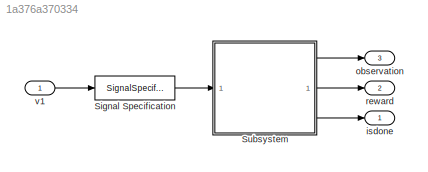
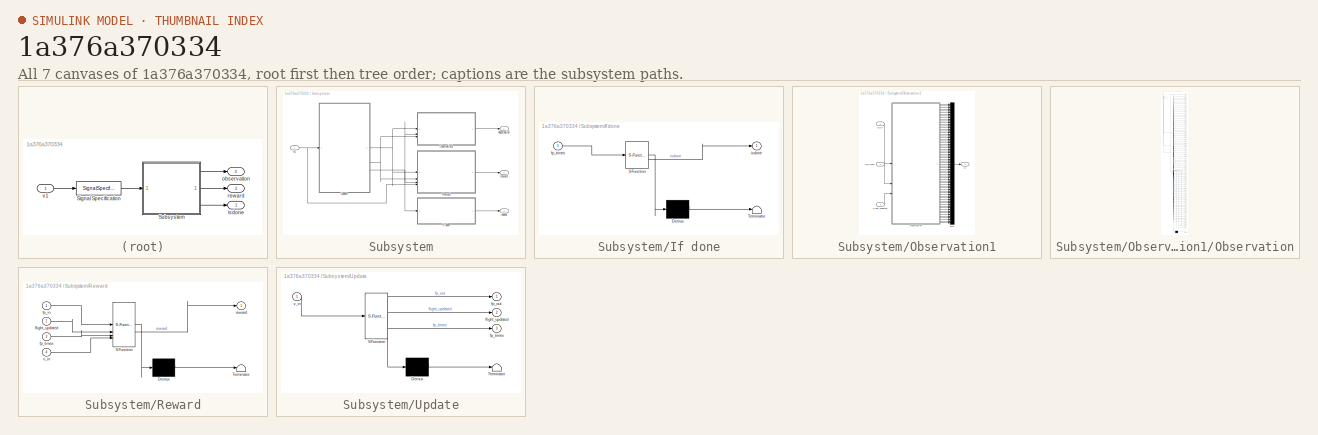
[diagram: thumbnail index - all 7 canvases of the model, root first then tree order]
MODEL slx_1a376a370334
KIND model
CONFIG AbsTol = auto
CONFIG EnableMultiTasking = off
CONFIG FixedStep = auto
CONFIG MaxStep = auto
CONFIG MinStep = auto
CONFIG RelTol = 1e-3
CONFIG SampleTimeConstraint = Unconstrained
CONFIG SolverName = VariableStepAuto
CONFIG StartTime = 0.0
CONFIG StopTime = 10.0
BLOCK [SignalSpecification] Signal Specification
  Dimensions = 1
BLOCK [SubSystem] Subsystem
BLOCK [SubSystem] Subsystem/If done
  ErrorFcn = Stateflow.Translate.translate
  LibrarySourceBlock = simulink/User-Defined\nFunctions/MATLAB Function
  PermitHierarchicalResolution = ExplicitOnly
  SFBlockType = MATLAB Function
  TreatAsAtomicUnit = on
BLOCK [Demux] Subsystem/If done/ Demux 
  Outputs = 1
BLOCK [S-Function] Subsystem/If done/ SFunction 
  EnableBusSupport = off
  FunctionName = sf_sfun
  PortCounts = [1 2]
  SFcnIsStateOwnerBlock = off
  SFunctionDeploymentMode = off
  Tag = Stateflow S-Function 7
BLOCK [Terminator] Subsystem/If done/ Terminator 
BLOCK [Inport] Subsystem/If done/fp_times
BLOCK [Outport] Subsystem/If done/isdone
BLOCK [SubSystem] Subsystem/Observation1
BLOCK [Mux] Subsystem/Observation1/Mux
  DisplayOption = bar
  Inputs = 72
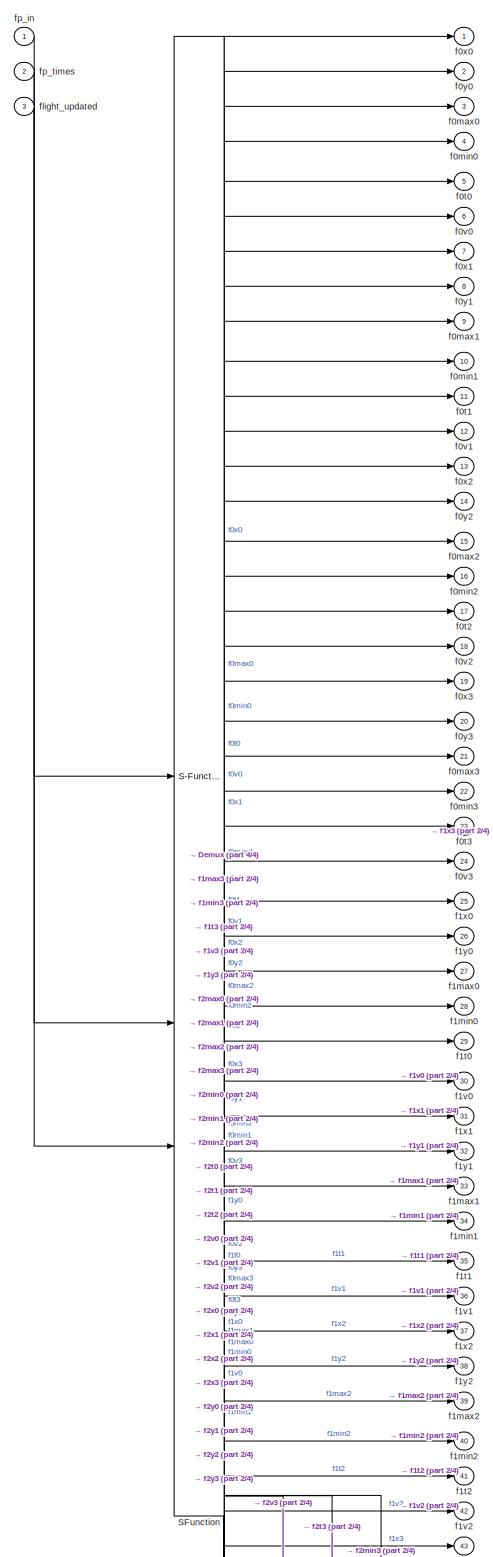
[diagram: Subsystem/Observation1/Observation - part 1/4, full width, top band]
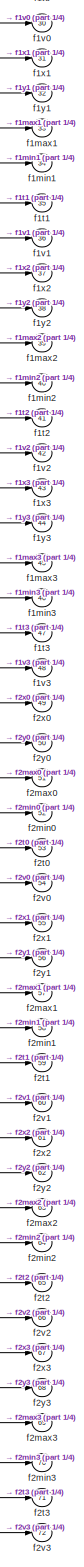
[diagram: Subsystem/Observation1/Observation - part 2/4, bottom right region]
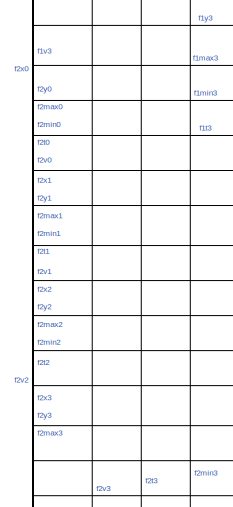
[diagram: Subsystem/Observation1/Observation - part 3/4, central region]
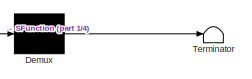
[diagram: Subsystem/Observation1/Observation - part 4/4, bottom right region]
BLOCK [SubSystem] Subsystem/Observation1/Observation
  ErrorFcn = Stateflow.Translate.translate
  LibrarySourceBlock = simulink/User-Defined\nFunctions/MATLAB Function
  PermitHierarchicalResolution = ExplicitOnly
  SFBlockType = MATLAB Function
  TreatAsAtomicUnit = on
BLOCK [Demux] Subsystem/Observation1/Observation/ Demux 
  Outputs = 1
BLOCK [S-Function] Subsystem/Observation1/Observation/ SFunction 
  EnableBusSupport = on
  FunctionName = sf_sfun
  PortCounts = [3 73]
  SFcnIsStateOwnerBlock = off
  SFunctionDeploymentMode = off
  Tag = Stateflow S-Function 8
BLOCK [Terminator] Subsystem/Observation1/Observation/ Terminator 
BLOCK [Outport] Subsystem/Observation1/Observation/f0max0
  Port = 3
BLOCK [Outport] Subsystem/Observation1/Observation/f0max1
  Port = 9
BLOCK [Outport] Subsystem/Observation1/Observation/f0max2
  Port = 15
BLOCK [Outport] Subsystem/Observation1/Observation/f0max3
  Port = 21
BLOCK [Outport] Subsystem/Observation1/Observation/f0min0
  Port = 4
BLOCK [Outport] Subsystem/Observation1/Observation/f0min1
  Port = 10
BLOCK [Outport] Subsystem/Observation1/Observation/f0min2
  Port = 16
BLOCK [Outport] Subsystem/Observation1/Observation/f0min3
  Port = 22
BLOCK [Outport] Subsystem/Observation1/Observation/f0t0
  Port = 5
BLOCK [Outport] Subsystem/Observation1/Observation/f0t1
  Port = 11
BLOCK [Outport] Subsystem/Observation1/Observation/f0t2
  Port = 17
BLOCK [Outport] Subsystem/Observation1/Observation/f0t3
  Port = 23
BLOCK [Outport] Subsystem/Observation1/Observation/f0v0
  Port = 6
BLOCK [Outport] Subsystem/Observation1/Observation/f0v1
  Port = 12
BLOCK [Outport] Subsystem/Observation1/Observation/f0v2
  Port = 18
BLOCK [Outport] Subsystem/Observation1/Observation/f0v3
  Port = 24
BLOCK [Outport] Subsystem/Observation1/Observation/f0x0
BLOCK [Outport] Subsystem/Observation1/Observation/f0x1
  Port = 7
BLOCK [Outport] Subsystem/Observation1/Observation/f0x2
  Port = 13
BLOCK [Outport] Subsystem/Observation1/Observation/f0x3
  Port = 19
BLOCK [Outport] Subsystem/Observation1/Observation/f0y0
  Port = 2
BLOCK [Outport] Subsystem/Observation1/Observation/f0y1
  Port = 8
BLOCK [Outport] Subsystem/Observation1/Observation/f0y2
  Port = 14
BLOCK [Outport] Subsystem/Observation1/Observation/f0y3
  Port = 20
BLOCK [Outport] Subsystem/Observation1/Observation/f1max0
  Port = 27
BLOCK [Outport] Subsystem/Observation1/Observation/f1max1
  Port = 33
BLOCK [Outport] Subsystem/Observation1/Observation/f1max2
  Port = 39
BLOCK [Outport] Subsystem/Observation1/Observation/f1max3
  Port = 45
BLOCK [Outport] Subsystem/Observation1/Observation/f1min0
  Port = 28
BLOCK [Outport] Subsystem/Observation1/Observation/f1min1
  Port = 34
BLOCK [Outport] Subsystem/Observation1/Observation/f1min2
  Port = 40
BLOCK [Outport] Subsystem/Observation1/Observation/f1min3
  Port = 46
BLOCK [Outport] Subsystem/Observation1/Observation/f1t0
  Port = 29
BLOCK [Outport] Subsystem/Observation1/Observation/f1t1
  Port = 35
BLOCK [Outport] Subsystem/Observation1/Observation/f1t2
  Port = 41
BLOCK [Outport] Subsystem/Observation1/Observation/f1t3
  Port = 47
BLOCK [Outport] Subsystem/Observation1/Observation/f1v0
  Port = 30
BLOCK [Outport] Subsystem/Observation1/Observation/f1v1
  Port = 36
BLOCK [Outport] Subsystem/Observation1/Observation/f1v2
  Port = 42
BLOCK [Outport] Subsystem/Observation1/Observation/f1v3
  Port = 48
BLOCK [Outport] Subsystem/Observation1/Observation/f1x0
  Port = 25
BLOCK [Outport] Subsystem/Observation1/Observation/f1x1
  Port = 31
BLOCK [Outport] Subsystem/Observation1/Observation/f1x2
  Port = 37
BLOCK [Outport] Subsystem/Observation1/Observation/f1x3
  Port = 43
BLOCK [Outport] Subsystem/Observation1/Observation/f1y0
  Port = 26
BLOCK [Outport] Subsystem/Observation1/Observation/f1y1
  Port = 32
BLOCK [Outport] Subsystem/Observation1/Observation/f1y2
  Port = 38
BLOCK [Outport] Subsystem/Observation1/Observation/f1y3
  Port = 44
BLOCK [Outport] Subsystem/Observation1/Observation/f2max0
  Port = 51
BLOCK [Outport] Subsystem/Observation1/Observation/f2max1
  Port = 57
BLOCK [Outport] Subsystem/Observation1/Observation/f2max2
  Port = 63
BLOCK [Outport] Subsystem/Observation1/Observation/f2max3
  Port = 69
BLOCK [Outport] Subsystem/Observation1/Observation/f2min0
  Port = 52
BLOCK [Outport] Subsystem/Observation1/Observation/f2min1
  Port = 58
BLOCK [Outport] Subsystem/Observation1/Observation/f2min2
  Port = 64
BLOCK [Outport] Subsystem/Observation1/Observation/f2min3
  Port = 70
BLOCK [Outport] Subsystem/Observation1/Observation/f2t0
  Port = 53
BLOCK [Outport] Subsystem/Observation1/Observation/f2t1
  Port = 59
BLOCK [Outport] Subsystem/Observation1/Observation/f2t2
  Port = 65
BLOCK [Outport] Subsystem/Observation1/Observation/f2t3
  Port = 71
BLOCK [Outport] Subsystem/Observation1/Observation/f2v0
  Port = 54
BLOCK [Outport] Subsystem/Observation1/Observation/f2v1
  Port = 60
BLOCK [Outport] Subsystem/Observation1/Observation/f2v2
  Port = 66
BLOCK [Outport] Subsystem/Observation1/Observation/f2v3
  Port = 72
BLOCK [Outport] Subsystem/Observation1/Observation/f2x0
  Port = 49
BLOCK [Outport] Subsystem/Observation1/Observation/f2x1
  Port = 55
BLOCK [Outport] Subsystem/Observation1/Observation/f2x2
  Port = 61
BLOCK [Outport] Subsystem/Observation1/Observation/f2x3
  Port = 67
BLOCK [Outport] Subsystem/Observation1/Observation/f2y0
  Port = 50
BLOCK [Outport] Subsystem/Observation1/Observation/f2y1
  Port = 56
BLOCK [Outport] Subsystem/Observation1/Observation/f2y2
  Port = 62
BLOCK [Outport] Subsystem/Observation1/Observation/f2y3
  Port = 68
BLOCK [Inport] Subsystem/Observation1/Observation/flight_updated
  Port = 3
BLOCK [Inport] Subsystem/Observation1/Observation/fp_in
BLOCK [Inport] Subsystem/Observation1/Observation/fp_times
  Port = 2
BLOCK [Inport] Subsystem/Observation1/flight_updated
  Port = 3
BLOCK [Outport] Subsystem/Observation1/fp
BLOCK [Inport] Subsystem/Observation1/fp_in
BLOCK [Inport] Subsystem/Observation1/fp_times
  Port = 2
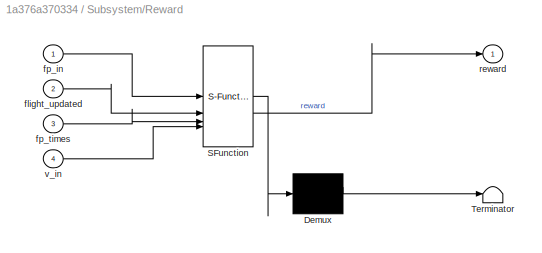
BLOCK [SubSystem] Subsystem/Reward
  ErrorFcn = Stateflow.Translate.translate
  LibrarySourceBlock = simulink/User-Defined\nFunctions/MATLAB Function
  PermitHierarchicalResolution = ExplicitOnly
  SFBlockType = MATLAB Function
  TreatAsAtomicUnit = on
BLOCK [Demux] Subsystem/Reward/ Demux 
  Outputs = 1
BLOCK [S-Function] Subsystem/Reward/ SFunction 
  EnableBusSupport = off
  FunctionName = sf_sfun
  PortCounts = [4 2]
  SFcnIsStateOwnerBlock = off
  SFunctionDeploymentMode = off
  Tag = Stateflow S-Function 6
BLOCK [Terminator] Subsystem/Reward/ Terminator 
BLOCK [Inport] Subsystem/Reward/flight_updated
  Port = 2
BLOCK [Inport] Subsystem/Reward/fp_in
BLOCK [Inport] Subsystem/Reward/fp_times
  Port = 3
BLOCK [Outport] Subsystem/Reward/reward
BLOCK [Inport] Subsystem/Reward/v_in
  Port = 4
BLOCK [SubSystem] Subsystem/Update
  ErrorFcn = Stateflow.Translate.translate
  LibrarySourceBlock = simulink/User-Defined\nFunctions/MATLAB Function
  PermitHierarchicalResolution = ExplicitOnly
  SFBlockType = MATLAB Function
  TreatAsAtomicUnit = on
BLOCK [Demux] Subsystem/Update/ Demux 
  Outputs = 1
BLOCK [S-Function] Subsystem/Update/ SFunction 
  EnableBusSupport = off
  FunctionName = sf_sfun
  Parameters = fp_in
  PortCounts = [1 4]
  SFcnIsStateOwnerBlock = off
  SFunctionDeploymentMode = off
  Tag = Stateflow S-Function 5
BLOCK [Terminator] Subsystem/Update/ Terminator 
BLOCK [Outport] Subsystem/Update/flight_updated
  Port = 2
BLOCK [Outport] Subsystem/Update/fp_out
BLOCK [Outport] Subsystem/Update/fp_times
  Port = 3
BLOCK [Inport] Subsystem/Update/v_in
BLOCK [Outport] Subsystem/isdone
  Port = 3
BLOCK [Outport] Subsystem/observation
BLOCK [Outport] Subsystem/reward
  Port = 2
BLOCK [Inport] Subsystem/v1
BLOCK [Outport] isdone
BLOCK [Outport] observation
  Port = 3
BLOCK [Outport] reward
  Port = 2
BLOCK [Inport] v1
LINE Signal Specification:1 -> Subsystem:1
LINE Subsystem/If done:1 -> Subsystem/isdone:1
LINE Subsystem/Observation1/Mux:1 -> Subsystem/Observation1/fp:1
LINE Subsystem/Observation1/Observation:1 -> Subsystem/Observation1/Mux:1
LINE Subsystem/Observation1/Observation:10 -> Subsystem/Observation1/Mux:10
LINE Subsystem/Observation1/Observation:11 -> Subsystem/Observation1/Mux:11
LINE Subsystem/Observation1/Observation:12 -> Subsystem/Observation1/Mux:12
LINE Subsystem/Observation1/Observation:13 -> Subsystem/Observation1/Mux:13
LINE Subsystem/Observation1/Observation:14 -> Subsystem/Observation1/Mux:14
LINE Subsystem/Observation1/Observation:15 -> Subsystem/Observation1/Mux:15
LINE Subsystem/Observation1/Observation:16 -> Subsystem/Observation1/Mux:16
LINE Subsystem/Observation1/Observation:17 -> Subsystem/Observation1/Mux:17
LINE Subsystem/Observation1/Observation:18 -> Subsystem/Observation1/Mux:18
LINE Subsystem/Observation1/Observation:19 -> Subsystem/Observation1/Mux:19
LINE Subsystem/Observation1/Observation:2 -> Subsystem/Observation1/Mux:2
LINE Subsystem/Observation1/Observation:20 -> Subsystem/Observation1/Mux:20
LINE Subsystem/Observation1/Observation:21 -> Subsystem/Observation1/Mux:21
LINE Subsystem/Observation1/Observation:22 -> Subsystem/Observation1/Mux:22
LINE Subsystem/Observation1/Observation:23 -> Subsystem/Observation1/Mux:23
LINE Subsystem/Observation1/Observation:24 -> Subsystem/Observation1/Mux:24
LINE Subsystem/Observation1/Observation:25 -> Subsystem/Observation1/Mux:25
LINE Subsystem/Observation1/Observation:26 -> Subsystem/Observation1/Mux:26
LINE Subsystem/Observation1/Observation:27 -> Subsystem/Observation1/Mux:27
LINE Subsystem/Observation1/Observation:28 -> Subsystem/Observation1/Mux:28
LINE Subsystem/Observation1/Observation:29 -> Subsystem/Observation1/Mux:29
LINE Subsystem/Observation1/Observation:3 -> Subsystem/Observation1/Mux:3
LINE Subsystem/Observation1/Observation:30 -> Subsystem/Observation1/Mux:30
LINE Subsystem/Observation1/Observation:31 -> Subsystem/Observation1/Mux:31
LINE Subsystem/Observation1/Observation:32 -> Subsystem/Observation1/Mux:32
LINE Subsystem/Observation1/Observation:33 -> Subsystem/Observation1/Mux:33
LINE Subsystem/Observation1/Observation:34 -> Subsystem/Observation1/Mux:34
LINE Subsystem/Observation1/Observation:35 -> Subsystem/Observation1/Mux:35
LINE Subsystem/Observation1/Observation:36 -> Subsystem/Observation1/Mux:36
LINE Subsystem/Observation1/Observation:37 -> Subsystem/Observation1/Mux:37
LINE Subsystem/Observation1/Observation:38 -> Subsystem/Observation1/Mux:38
LINE Subsystem/Observation1/Observation:39 -> Subsystem/Observation1/Mux:39
LINE Subsystem/Observation1/Observation:4 -> Subsystem/Observation1/Mux:4
LINE Subsystem/Observation1/Observation:40 -> Subsystem/Observation1/Mux:40
LINE Subsystem/Observation1/Observation:41 -> Subsystem/Observation1/Mux:41
LINE Subsystem/Observation1/Observation:42 -> Subsystem/Observation1/Mux:42
LINE Subsystem/Observation1/Observation:43 -> Subsystem/Observation1/Mux:43
LINE Subsystem/Observation1/Observation:44 -> Subsystem/Observation1/Mux:44
LINE Subsystem/Observation1/Observation:45 -> Subsystem/Observation1/Mux:45
LINE Subsystem/Observation1/Observation:46 -> Subsystem/Observation1/Mux:46
LINE Subsystem/Observation1/Observation:47 -> Subsystem/Observation1/Mux:47
LINE Subsystem/Observation1/Observation:48 -> Subsystem/Observation1/Mux:48
LINE Subsystem/Observation1/Observation:49 -> Subsystem/Observation1/Mux:49
LINE Subsystem/Observation1/Observation:5 -> Subsystem/Observation1/Mux:5
LINE Subsystem/Observation1/Observation:50 -> Subsystem/Observation1/Mux:50
LINE Subsystem/Observation1/Observation:51 -> Subsystem/Observation1/Mux:51
LINE Subsystem/Observation1/Observation:52 -> Subsystem/Observation1/Mux:52
LINE Subsystem/Observation1/Observation:53 -> Subsystem/Observation1/Mux:53
LINE Subsystem/Observation1/Observation:54 -> Subsystem/Observation1/Mux:54
LINE Subsystem/Observation1/Observation:55 -> Subsystem/Observation1/Mux:55
LINE Subsystem/Observation1/Observation:56 -> Subsystem/Observation1/Mux:56
LINE Subsystem/Observation1/Observation:57 -> Subsystem/Observation1/Mux:57
LINE Subsystem/Observation1/Observation:58 -> Subsystem/Observation1/Mux:58
LINE Subsystem/Observation1/Observation:59 -> Subsystem/Observation1/Mux:59
LINE Subsystem/Observation1/Observation:6 -> Subsystem/Observation1/Mux:6
LINE Subsystem/Observation1/Observation:60 -> Subsystem/Observation1/Mux:60
LINE Subsystem/Observation1/Observation:61 -> Subsystem/Observation1/Mux:61
LINE Subsystem/Observation1/Observation:62 -> Subsystem/Observation1/Mux:62
LINE Subsystem/Observation1/Observation:63 -> Subsystem/Observation1/Mux:63
LINE Subsystem/Observation1/Observation:64 -> Subsystem/Observation1/Mux:64
LINE Subsystem/Observation1/Observation:65 -> Subsystem/Observation1/Mux:65
LINE Subsystem/Observation1/Observation:66 -> Subsystem/Observation1/Mux:66
LINE Subsystem/Observation1/Observation:67 -> Subsystem/Observation1/Mux:67
LINE Subsystem/Observation1/Observation:68 -> Subsystem/Observation1/Mux:68
LINE Subsystem/Observation1/Observation:69 -> Subsystem/Observation1/Mux:69
LINE Subsystem/Observation1/Observation:7 -> Subsystem/Observation1/Mux:7
LINE Subsystem/Observation1/Observation:70 -> Subsystem/Observation1/Mux:70
LINE Subsystem/Observation1/Observation:71 -> Subsystem/Observation1/Mux:71
LINE Subsystem/Observation1/Observation:72 -> Subsystem/Observation1/Mux:72
LINE Subsystem/Observation1/Observation:8 -> Subsystem/Observation1/Mux:8
LINE Subsystem/Observation1/Observation:9 -> Subsystem/Observation1/Mux:9
LINE Subsystem/Observation1/flight_updated:1 -> Subsystem/Observation1/Observation:3
LINE Subsystem/Observation1/fp_in:1 -> Subsystem/Observation1/Observation:1
LINE Subsystem/Observation1/fp_times:1 -> Subsystem/Observation1/Observation:2
LINE Subsystem/Observation1:1 -> Subsystem/observation:1
LINE Subsystem/Reward:1 -> Subsystem/reward:1
NET Subsystem/Update:1 -> Subsystem/Observation1:1, Subsystem/Reward:1
NET Subsystem/Update:2 -> Subsystem/Observation1:3, Subsystem/Reward:2
NET Subsystem/Update:3 -> Subsystem/If done:1, Subsystem/Observation1:2, Subsystem/Reward:3
NET Subsystem/v1:1 -> Subsystem/Reward:4, Subsystem/Update:1
LINE Subsystem:1 -> observation:1
LINE Subsystem:2 -> reward:1
LINE Subsystem:3 -> isdone:1
LINE v1:1 -> Signal Specification:1
note: NET lines group one-source signal fan-out (src -> all destinations, sorted); 1:1 wires keep LINE
CHART Subsystem/If done states=1 transitions=1
  STATE_LABEL 'eML_blk_kernel()'
  STATE_LABEL 'SCRIPT:\nfunction isdone  = fcn(fp_times)\n\ncheck = all(isnan(fp_times(:,1)));\n\nif check\n    isdone = 1;\nelse\n    isdone = 0;\nend\n\nend\n\n'
CHART Subsystem/Observation1/Observation states=1 transitions=1
  STATE_LABEL 'eML_blk_kernel()'
  STATE_LABEL 'SCRIPT:\nfunction [f0x0,f0y0,f0max0,f0min0,f0t0,f0v0, f0x1,f0y1,f0max1,f0min1,f0t1,f0v1, f0x2,f0y2,f0max2,f0min2,f0t2,f0v2, f0x3,f0y3,f0max3,f0min3,f0t3,f0v3,  f1x0,f1y0,f1max0,f1min0,f1t0,f1v0, f1x1,f1y1,f1max1,f1min1,f1t1,f1v1, f1x2,f1y2,f1max2,f1min2,f1t2,f1v2, f1x3,f1y3,f1max3,f1min3,f1t3,f1v3,  f2x0,f2y0,f2max0,f2min0,f2t0,f2v0, f2x1,f2y1,f2max1,f2min1,f2t1,f2v1, f2x2,f2y2,f2max2,f2min2,f2t2,f...<+3608ch>'
CHART Subsystem/Update states=1 transitions=1
  STATE_LABEL 'eML_blk_kernel()'
  STATE_LABEL 'SCRIPT:\nfunction [fp_out,flight_updated,fp_times]= fcn(v_in, fp_in)\n\n\n%%\n\nnum_col = length(fp_in);     \nint_col = round(num_col/6); \nfp_times = zeros(int_col,3);\n\n\nif fp_in(2,5*1) == 0                         \n    fp_times(1,1) = fp_in(1,5*1);\n    fp_times(1,2) = fp_in(1,6*1);\n    fp_times(1,3) = 1;\nelse\n    fp1row = 3;\n    while fp1row <= length(fp_in(:,1*1))\n        if fp_in(fp1row,5*1) == 0\n   ...<+3608ch>'
CHART Subsystem/Reward states=1 transitions=1
  STATE_LABEL 'eML_blk_kernel()'
  STATE_LABEL 'SCRIPT:\nfunction reward    = fcn(fp_in,flight_updated,fp_times,v_in)\n\n\ncolinfile = flight_updated(1,1);     \ncurrentflight = colinfile*6;\nrowinfile = flight_updated(1,2);    \nt1 = flight_updated(1,3);\nv1 = flight_updated(1,4);          \n\n\n%% For IAS change\n\nif v_in ~= 0\n    v_change = 0.0001;\n    \nelse\n    v_change = -0.00001;\nend   \n\n%% For max IAS and positive reward for completing a flight\n\nv_m...<+3592ch>'
CHART  states=0 transitions=0
CHART  states=0 transitions=0
CHART  states=0 transitions=0
CHART  states=0 transitions=0
